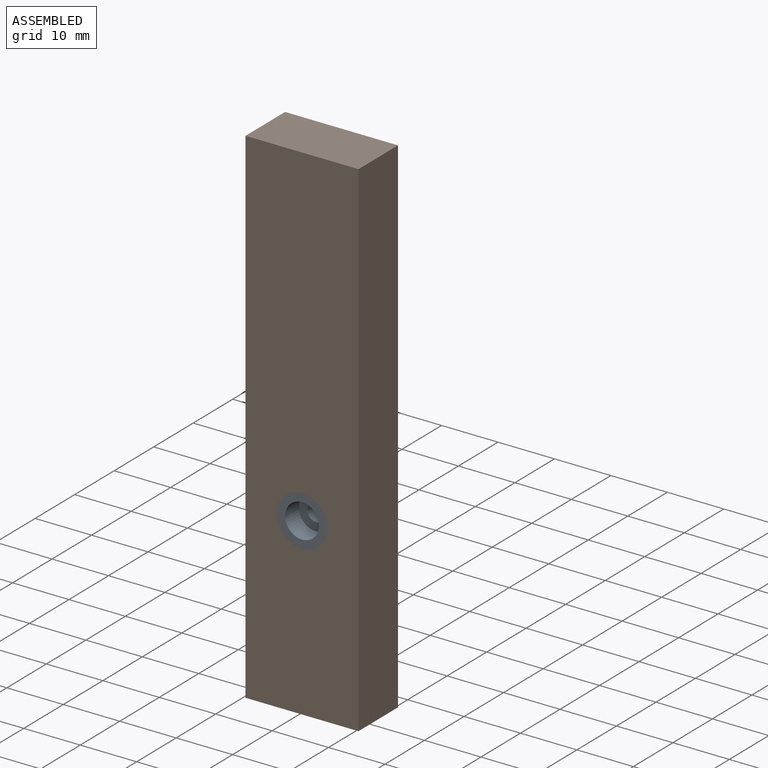
[diagram: assembled view]
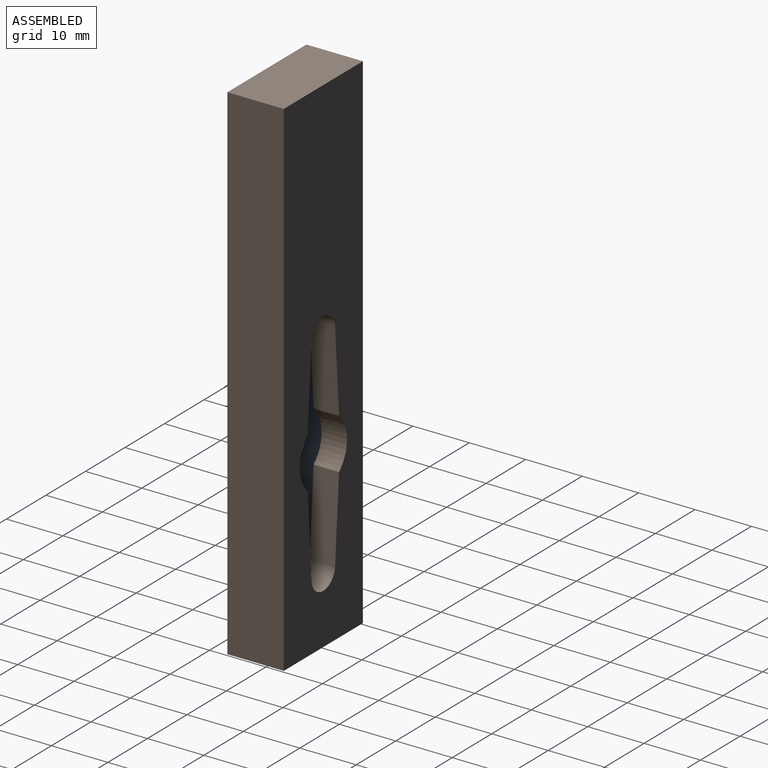
[diagram: assembled view, second angle]
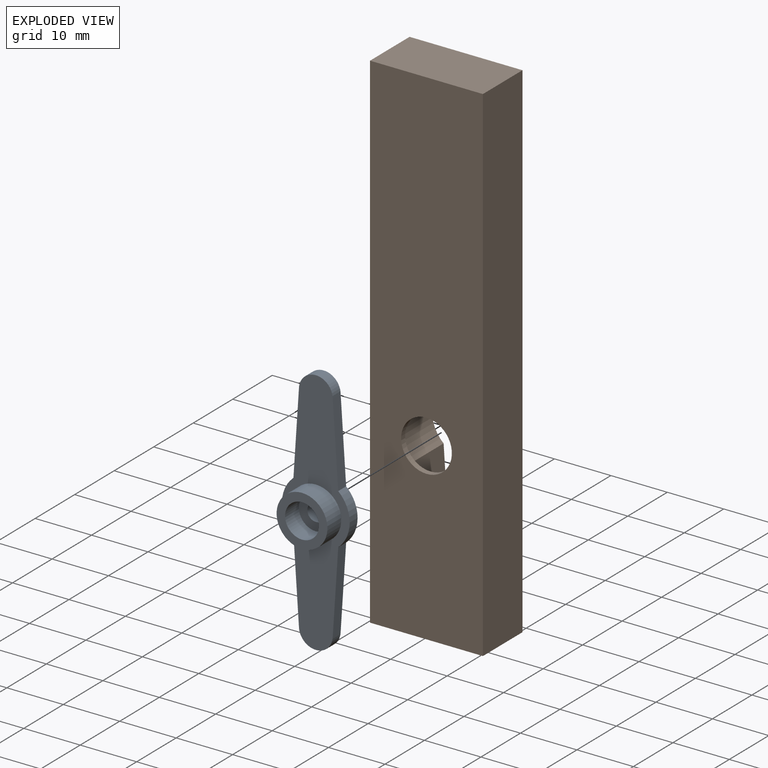
[diagram: exploded view]
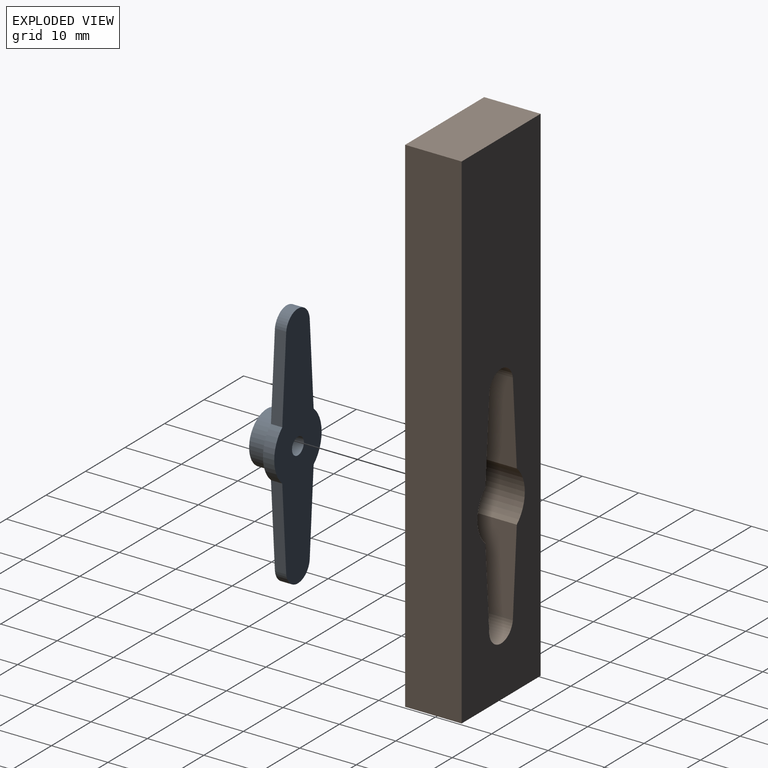
[diagram: exploded view, second angle]
ASSEMBLY  parts=2 mates=2
PART A: 15 faces, bbox 12x5.5x44 mm
  f0: plane 6x6mm, normal (0,-1,0), area 21.2mm2, adj f9,f12
  f1: cylinder r=3mm len=6mm, axis (0,1,0), area 18.8mm2, adj f2,f8,f10,f11
  f2: plane 14.5x2mm, normal (-1,0,0.07), area 29.1mm2, adj f1,f3,f10,f11
  f3: cylinder r=6mm len=9mm, axis (0,1,0), area 20.4mm2, adj f2,f4,f10,f11
  f4: plane 14.5x2mm, normal (-1,0,-0.07), area 29.1mm2, adj f3,f5,f10,f11
  f5: cylinder r=3mm len=6mm, axis (0,1,0), area 18.8mm2, adj f4,f6,f10,f11
  f6: plane 14.5x2mm, normal (1,0,-0.07), area 29.1mm2, adj f5,f7,f10,f11
  f7: cylinder r=6mm len=9mm, axis (0,1,0), area 20.4mm2, adj f6,f8,f10,f11
  f8: plane 14.5x2mm, normal (1,0,0.07), area 29.1mm2, adj f1,f7,f10,f11
  f9: cylinder r=1.5mm len=3mm, axis (0,1,0), area 18.8mm2, adj f0,f11
  f10: plane 44x12mm, normal (0,-1,0), area 263.5mm2, adj f1,f2,f3,f4,f5,f6,f7,f8
  f11: plane 44x12mm, normal (0,1,0), area 320.1mm2, adj f1,f2,f3,f4,f5,f6,f7,f8
  f12: cylinder r=3mm len=6mm, axis (0,1,0), area 66mm2, adj f0,f14
  f13: cylinder r=4.5mm len=9mm, axis (0,1,0), area 99mm2, adj f10,f14
  f14: plane 9x9mm, normal (0,-1,0), area 35.3mm2, adj f12,f13
PART B: 16 faces, bbox 20x10x90 mm
  f0: plane 20x10mm, normal (0,0,1), area 200mm2, adj f1,f3,f4,f5
  f1: plane 90x10mm, normal (-1,0,0), area 900mm2, adj f0,f2,f4,f5
  f2: plane 20x10mm, normal (0,0,-1), area 200mm2, adj f1,f3,f4,f5
  f3: plane 90x10mm, normal (1,0,0), area 900mm2, adj f0,f2,f4,f5
  f4: plane 90x20mm, normal (0,-1,0), area 1736.4mm2, adj f0,f1,f2,f3,f15
  f5: plane 90x20mm, normal (0,1,0), area 1472.9mm2, adj f0,f1,f2,f3,f6,f7,f8,f9
  f6: cylinder r=3mm len=9mm, axis (0,1,0), area 84.8mm2, adj f5,f7,f13,f14
  f7: plane 14.5x9mm, normal (1,0,-0.07), area 130.8mm2, adj f5,f6,f8,f14
  f8: cylinder r=6mm len=9mm, axis (0,1,0), area 91.6mm2, adj f5,f7,f9,f14
  f9: plane 14.5x9mm, normal (1,0,0.07), area 130.8mm2, adj f5,f8,f10,f14
  f10: cylinder r=3mm len=9mm, axis (0,1,0), area 84.8mm2, adj f5,f9,f11,f14
  f11: plane 14.5x9mm, normal (-1,0,0.07), area 130.8mm2, adj f5,f10,f12,f14
  f12: cylinder r=6mm len=9mm, axis (0,1,0), area 91.6mm2, adj f5,f11,f13,f14
  f13: plane 14.5x9mm, normal (-1,0,-0.07), area 130.8mm2, adj f5,f6,f12,f14
  f14: plane 44x12mm, normal (0,1,0), area 263.5mm2, adj f6,f7,f8,f9,f10,f11,f12,f13
  f15: cylinder r=4.5mm len=9mm, axis (0,1,0), area 28.3mm2, adj f4,f14
PLACE A t=(2.07,-29.88,32.45)mm
PLACE B t=(2.37,-25.38,32.45)mm
MATE planar B.f4 <-> A.f13  axis (0,-1,0) through (2.07,-35.38,46.96)mm
MATE fastened B.f15 <-> A.f13  axis (0,-1,0) through (2.07,-35.38,32.45)mm
